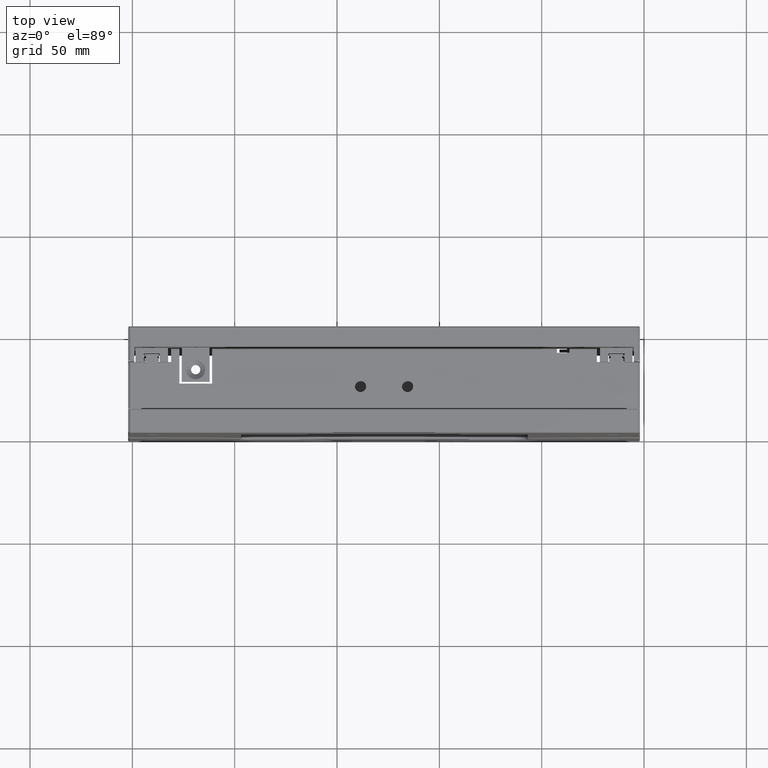
[diagram: clean part render]
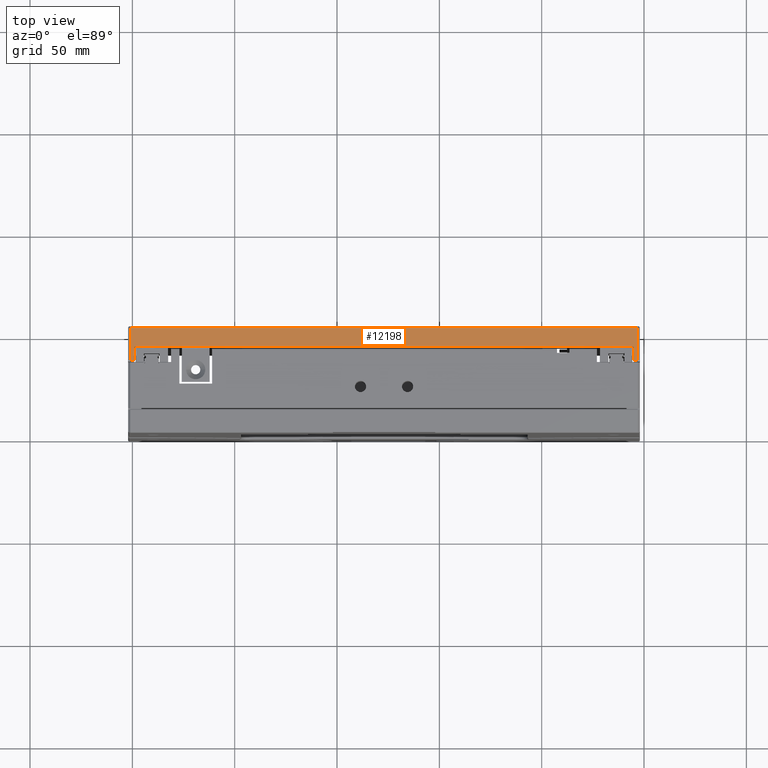
[diagram: same view with one face highlighted and labeled with its STEP entity id]
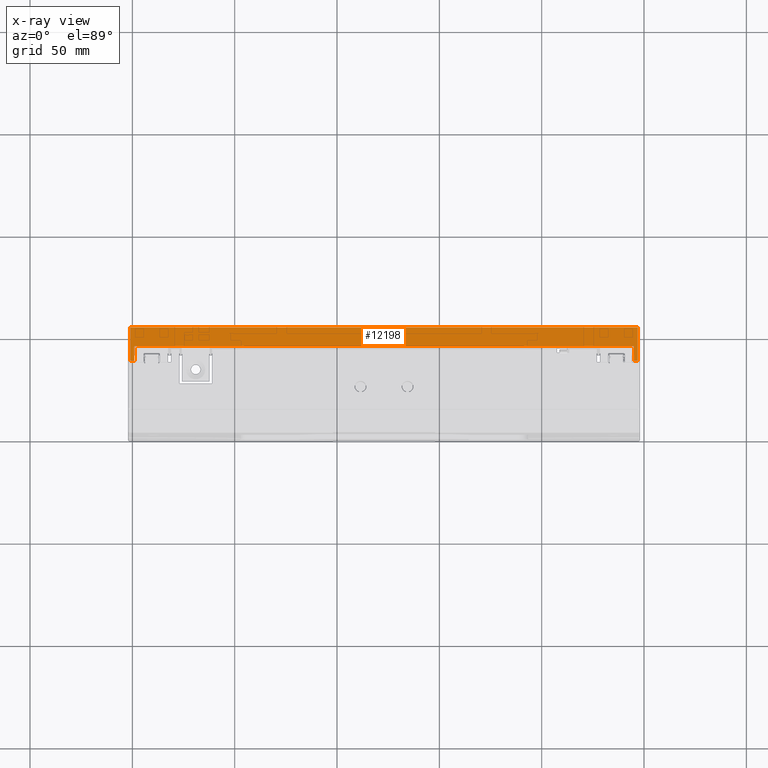
[diagram: x-ray of the same camera — body ghosted, the highlighted face saturated]
A machine part, top view. The second image highlights one B-rep face of the part: STEP entity #12198.
The next image is the same camera in x-ray: the body ghosted, the highlighted face saturated — about 0% of this face is hidden behind the body in this view.
In plain terms, the highlighted planar face has unit normal (0, -0, -1).
Its self-contained STEP definition (entity closure, byte-faithful):
#266 = VECTOR ( 'NONE', #1105, 1000.000000000000000 ) ;
#459 = LINE ( 'NONE', #7220, #7938 ) ;
#907 = VERTEX_POINT ( 'NONE', #21570 ) ;
#1083 = CARTESIAN_POINT ( 'NONE',  ( -301.0477721377216700, 51.50000000000004300, 249.9999999999991800 ) ) ;
#1105 = DIRECTION ( 'NONE',  ( 1.990750518977365900E-023, -1.000000000000000000, 7.182434939466754200E-017 ) ) ;
#1495 = DIRECTION ( 'NONE',  ( 1.990750518977365900E-023, -1.000000000000000000, 7.182434939466754200E-017 ) ) ;
#1559 = LINE ( 'NONE', #4101, #7892 ) ;
#2160 = VECTOR ( 'NONE', #8061, 1000.000000000000000 ) ;
#2498 = VECTOR ( 'NONE', #16536, 1000.000000000000000 ) ;
#3214 = CARTESIAN_POINT ( 'NONE',  ( -55.04777213772158000, 42.19999999999996700, 250.0000000000000000 ) ) ;
#4101 = CARTESIAN_POINT ( 'NONE',  ( -299.0477721377216100, 42.00000000000004300, 249.9999999999991800 ) ) ;
#4264 = FACE_OUTER_BOUND ( 'NONE', #22026, .T. ) ;
#4379 = EDGE_CURVE ( 'NONE', #14576, #14976, #18132, .T. ) ;
#4547 = VERTEX_POINT ( 'NONE', #15330 ) ;
#4679 = EDGE_CURVE ( 'NONE', #5330, #907, #22746, .T. ) ;
#4937 = VERTEX_POINT ( 'NONE', #18481 ) ;
#5330 = VERTEX_POINT ( 'NONE', #3214 ) ;
#5981 = VECTOR ( 'NONE', #15794, 1000.000000000000000 ) ;
#6432 = EDGE_CURVE ( 'NONE', #907, #21480, #10257, .T. ) ;
#7021 = VECTOR ( 'NONE', #9403, 1000.000000000000000 ) ;
#7220 = CARTESIAN_POINT ( 'NONE',  ( -53.04777213772156600, 35.00000000000004300, 250.0000000000000000 ) ) ;
#7892 = VECTOR ( 'NONE', #11272, 1000.000000000000000 ) ;
#7938 = VECTOR ( 'NONE', #9045, 1000.000000000000000 ) ;
#8061 = DIRECTION ( 'NONE',  ( 1.000000000000000000, 1.990750543896442900E-023, 3.469446951953614200E-015 ) ) ;
#9045 = DIRECTION ( 'NONE',  ( -1.990750518977365900E-023, 1.000000000000000000, -7.182434939466754200E-017 ) ) ;
#9403 = DIRECTION ( 'NONE',  ( 1.000000000000000000, 1.990750543896442900E-023, 3.469446951953614200E-015 ) ) ;
#9564 = CARTESIAN_POINT ( 'NONE',  ( -52.04777213772161600, 42.19999999999996700, 250.0000000000000000 ) ) ;
#9994 = ORIENTED_EDGE ( 'NONE', *, *, #14972, .F. ) ;
#10257 = LINE ( 'NONE', #16617, #2498 ) ;
#11060 = VERTEX_POINT ( 'NONE', #23781 ) ;
#11077 = LINE ( 'NONE', #1083, #5981 ) ;
#11152 = DIRECTION ( 'NONE',  ( 1.990750518977365900E-023, -1.000000000000000000, 7.182434939466754200E-017 ) ) ;
#11272 = DIRECTION ( 'NONE',  ( 1.990750518977365900E-023, -1.000000000000000000, 7.182434939466754200E-017 ) ) ;
#11771 = ORIENTED_EDGE ( 'NONE', *, *, #14417, .T. ) ;
#12015 = CARTESIAN_POINT ( 'NONE',  ( -55.04777213772158000, 42.00000000000004300, 250.0000000000000000 ) ) ;
#12198 = ADVANCED_FACE ( 'NONE', ( #4264 ), #16298, .F. ) ;
#12243 = CARTESIAN_POINT ( 'NONE',  ( -53.04777213772156600, 35.19999999999996700, 250.0000000000000000 ) ) ;
#12491 = DIRECTION ( 'NONE',  ( 3.469446951953614200E-015, -7.182434939466754200E-017, -1.000000000000000000 ) ) ;
#12632 = EDGE_CURVE ( 'NONE', #21480, #11060, #459, .T. ) ;
#12940 = EDGE_CURVE ( 'NONE', #14976, #4547, #17413, .T. ) ;
#14417 = EDGE_CURVE ( 'NONE', #4937, #5330, #16464, .T. ) ;
#14576 = VERTEX_POINT ( 'NONE', #22595 ) ;
#14710 = EDGE_CURVE ( 'NONE', #11060, #14576, #11077, .T. ) ;
#14765 = ORIENTED_EDGE ( 'NONE', *, *, #4679, .T. ) ;
#14972 = EDGE_CURVE ( 'NONE', #4937, #4547, #1559, .T. ) ;
#14976 = VERTEX_POINT ( 'NONE', #22240 ) ;
#15330 = CARTESIAN_POINT ( 'NONE',  ( -299.0477721377216100, 35.19999999999996700, 249.9999999999991800 ) ) ;
#15754 = ORIENTED_EDGE ( 'NONE', *, *, #4379, .T. ) ;
#15794 = DIRECTION ( 'NONE',  ( -1.000000000000000000, -1.990750543896442900E-023, -3.469446951953614200E-015 ) ) ;
#16298 = PLANE ( 'NONE',  #20825 ) ;
#16464 = LINE ( 'NONE', #9564, #7021 ) ;
#16536 = DIRECTION ( 'NONE',  ( 1.000000000000000000, 1.990750543896442900E-023, 3.469446951953614200E-015 ) ) ;
#16617 = CARTESIAN_POINT ( 'NONE',  ( -52.04777213772161600, 35.19999999999996700, 250.0000000000000000 ) ) ;
#17413 = LINE ( 'NONE', #19078, #2160 ) ;
#18132 = LINE ( 'NONE', #22203, #22467 ) ;
#18362 = ORIENTED_EDGE ( 'NONE', *, *, #12632, .T. ) ;
#18481 = CARTESIAN_POINT ( 'NONE',  ( -299.0477721377216100, 42.19999999999996700, 249.9999999999991800 ) ) ;
#19078 = CARTESIAN_POINT ( 'NONE',  ( -52.04777213772161600, 35.19999999999996700, 250.0000000000000000 ) ) ;
#20825 = AXIS2_PLACEMENT_3D ( 'NONE', #23796, #12491, #1495 ) ;
#20997 = ORIENTED_EDGE ( 'NONE', *, *, #14710, .T. ) ;
#21073 = ORIENTED_EDGE ( 'NONE', *, *, #12940, .T. ) ;
#21480 = VERTEX_POINT ( 'NONE', #12243 ) ;
#21570 = CARTESIAN_POINT ( 'NONE',  ( -55.04777213772158000, 35.19999999999996700, 250.0000000000000000 ) ) ;
#21828 = ORIENTED_EDGE ( 'NONE', *, *, #6432, .T. ) ;
#22026 = EDGE_LOOP ( 'NONE', ( #9994, #11771, #14765, #21828, #18362, #20997, #15754, #21073 ) ) ;
#22203 = CARTESIAN_POINT ( 'NONE',  ( -301.0477721377216700, 35.00000000000004300, 249.9999999999991800 ) ) ;
#22240 = CARTESIAN_POINT ( 'NONE',  ( -301.0477721377216700, 35.19999999999996700, 249.9999999999991800 ) ) ;
#22467 = VECTOR ( 'NONE', #11152, 1000.000000000000000 ) ;
#22595 = CARTESIAN_POINT ( 'NONE',  ( -301.0477721377216700, 51.50000000000004300, 249.9999999999991800 ) ) ;
#22746 = LINE ( 'NONE', #12015, #266 ) ;
#23781 = CARTESIAN_POINT ( 'NONE',  ( -53.04777213772156600, 51.50000000000004300, 250.0000000000000000 ) ) ;
#23796 = CARTESIAN_POINT ( 'NONE',  ( -52.04777213772161600, 35.00000000000004300, 250.0000000000000000 ) ) ;